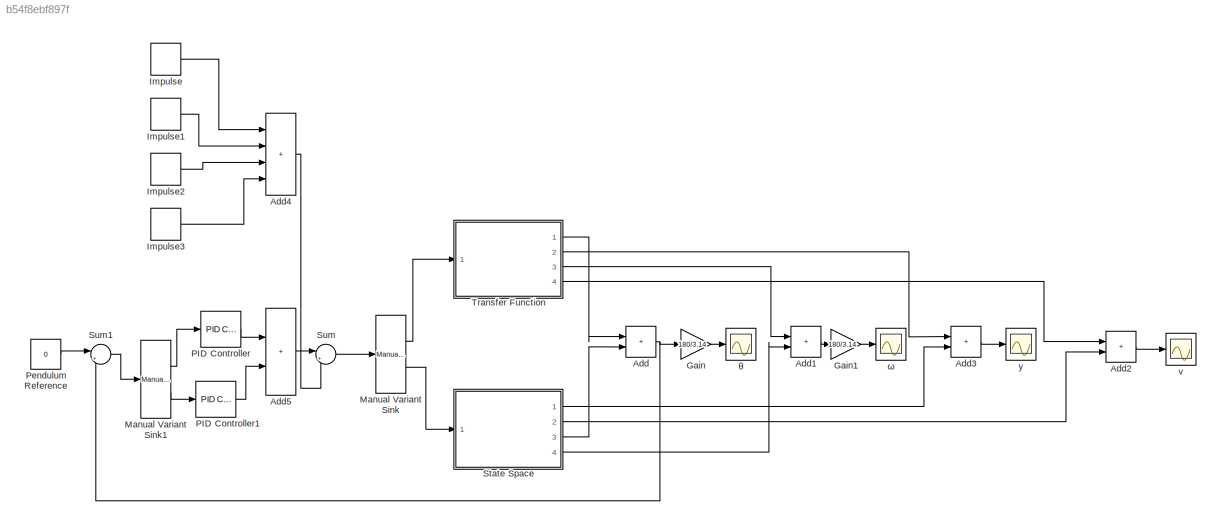
MODEL slx_b54f8ebf897f
KIND model
CONFIG AbsTol = auto
CONFIG EnableMultiTasking = off
CONFIG FixedStep = auto
CONFIG MaxStep = auto
CONFIG MinStep = auto
CONFIG RelTol = 1e-3
CONFIG SampleTimeConstraint = Unconstrained
CONFIG SolverName = VariableStepAuto
CONFIG StartTime = 0.0
CONFIG StopTime = 10
BLOCK [Sum] Add
  IconShape = rectangular
  Ports = [2, 1]
BLOCK [Sum] Add1
  IconShape = rectangular
  Ports = [2, 1]
BLOCK [Sum] Add2
  IconShape = rectangular
  Ports = [2, 1]
BLOCK [Sum] Add3
  IconShape = rectangular
  Ports = [2, 1]
BLOCK [Sum] Add4
  IconShape = rectangular
  Inputs = ++++
  Ports = [4, 1]
BLOCK [Sum] Add5
  IconShape = rectangular
  Ports = [2, 1]
BLOCK [Gain] Gain
  Gain = 180/3.14
BLOCK [Gain] Gain1
  Gain = 180/3.14
BLOCK [DiscretePulseGenerator] Impulse
  Amplitude = 10e5
  Period = 10
  PhaseDelay = 2
  Ports = [0, 1]
  PulseType = Time based
  PulseWidth = 0.01
BLOCK [DiscretePulseGenerator] Impulse1
  Amplitude = -10e5
  Period = 10
  PhaseDelay = 4
  Ports = [0, 1]
  PulseType = Time based
  PulseWidth = 0.01
BLOCK [DiscretePulseGenerator] Impulse2
  Amplitude = 10e5
  Period = 10
  PhaseDelay = 6
  Ports = [0, 1]
  PulseType = Time based
  PulseWidth = 0.01
BLOCK [DiscretePulseGenerator] Impulse3
  Amplitude = -10e5
  Period = 10
  PhaseDelay = 8
  Ports = [0, 1]
  PulseType = Time based
  PulseWidth = 0.01
BLOCK [Reference] Manual Variant Sink  REF=simulink/Signal
Routing/Manual
Variant Sink
  Ports = [1, 2]
  SourceBlock = simulink/Signal\nRouting/Manual\nVariant Sink
  SourceProductBaseCode = SL
  SourceType = ManualVariantSink
BLOCK [Reference] Manual Variant Sink1  REF=simulink/Signal
Routing/Manual
Variant Sink
  Ports = [1, 2]
  SourceBlock = simulink/Signal\nRouting/Manual\nVariant Sink
  SourceProductBaseCode = SL
  SourceType = ManualVariantSink
BLOCK [Reference] PID Controller  REF=slpidlib/PID Controller
  Ports = [1, 1]
  SourceBlock = slpidlib/PID Controller
  SourceProductBaseCode = SL
  SourceType = PID 1dof
BLOCK [Reference] PID Controller1  REF=slpidlib/PID Controller
  Ports = [1, 1]
  SourceBlock = slpidlib/PID Controller
  SourceProductBaseCode = SL
  SourceType = PID 1dof
BLOCK [Constant] Pendulum Reference
  OutDataTypeStr = Inherit: Inherit via back propagation
  Value = 0
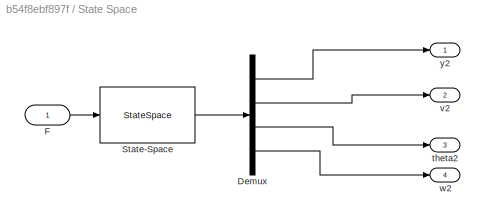
BLOCK [SubSystem] State Space
  Ports = [1, 4]
  RequestExecContextInheritance = off
BLOCK [Demux] State Space/Demux
  Ports = [1, 4]
BLOCK [Inport] State Space/F
BLOCK [StateSpace] State Space/State-Space
  A = [0 1 0 0;0 0 -7.0335 0;0 0 0 1;0 0 14.853 0]
  B = [0;0.016;0;-0.01407]
  C = [1 0 0 0;0 1 0 0;0 0 1 0;0 0 0 1]
  D = [0;0;0;0]
  InitialCondition = 0
  Ports = [1, 1]
BLOCK [Outport] State Space/theta2
  Port = 3
BLOCK [Outport] State Space/v2
  Port = 2
BLOCK [Outport] State Space/w2
  Port = 4
BLOCK [Outport] State Space/y2
  IconDisplay = Port number and signal name
BLOCK [Sum] Sum
  Inputs = |++
  Ports = [2, 1]
BLOCK [Sum] Sum1
  Inputs = |+-
  Ports = [2, 1]
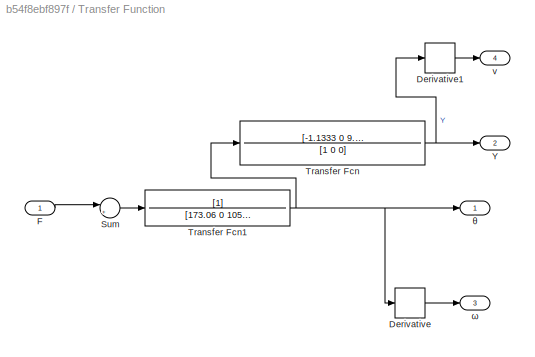
BLOCK [SubSystem] Transfer Function
  Ports = [1, 4]
  RequestExecContextInheritance = off
BLOCK [Derivative] Transfer Function/Derivative
BLOCK [Derivative] Transfer Function/Derivative1
BLOCK [Inport] Transfer Function/F
BLOCK [Sum] Transfer Function/Sum
  Inputs = |+-
  Ports = [2, 1]
BLOCK [TransferFcn] Transfer Function/Transfer Fcn
  Denominator = [1 0 0]
  Numerator = [-1.1333 0 9.8]
BLOCK [TransferFcn] Transfer Function/Transfer Fcn1
  Denominator = [173.06 0 1055.46]
BLOCK [Outport] Transfer Function/Y
  Port = 2
BLOCK [Outport] Transfer Function/v
  Port = 4
BLOCK [Outport] Transfer Function/θ
BLOCK [Outport] Transfer Function/ω
  Port = 3
BLOCK [Scope] v
  Floating = off
  NumInputPorts = 1
  Ports = [1]
  ScopeSpecificationString = Simulink.scopes.TimeScopeBlockCfg('CurrentConfiguration', extmgr.ConfigurationSet(extmgr.Configuration('Core','General UI',true),extmgr.Configuration('Core','Source UI',true),extmgr.Configuration('Sources','WiredSimulink',true,'DataLoggingVariableName','v','DataLogging',true,'DataLoggingSaveFormat','Array'),extmgr.Configuration('Visuals','Time Domain',true,'SerializedDisplays',{struct('MinYLimReal...<+1411ch>
BLOCK [Scope] y
  Floating = off
  NumInputPorts = 1
  Ports = [1]
  ScopeSpecificationString = Simulink.scopes.TimeScopeBlockCfg('CurrentConfiguration', extmgr.ConfigurationSet(extmgr.Configuration('Core','General UI',true),extmgr.Configuration('Core','Source UI',true),extmgr.Configuration('Sources','WiredSimulink',true,'DataLoggingVariableName','y','DataLogging',true,'DataLoggingSaveFormat','Array'),extmgr.Configuration('Visuals','Time Domain',true,'SerializedDisplays',{struct('MinYLimReal...<+1438ch>
BLOCK [Scope] θ
  Floating = off
  NumInputPorts = 1
  Ports = [1]
  ScopeSpecificationString = Simulink.scopes.TimeScopeBlockCfg('CurrentConfiguration', extmgr.ConfigurationSet(extmgr.Configuration('Core','General UI',true),extmgr.Configuration('Core','Source UI',true),extmgr.Configuration('Sources','WiredSimulink',true,'DataLoggingVariableName','theta','DataLogging',true,'DataLoggingSaveFormat','Array'),extmgr.Configuration('Visuals','Time Domain',true,'SerializedDisplays',{struct('MinYLim...<+1448ch>
BLOCK [Scope] ω
  Floating = off
  NumInputPorts = 1
  Ports = [1]
  ScopeSpecificationString = Simulink.scopes.TimeScopeBlockCfg('CurrentConfiguration', extmgr.ConfigurationSet(extmgr.Configuration('Core','General UI',true),extmgr.Configuration('Core','Source UI',true),extmgr.Configuration('Sources','WiredSimulink',true,'DataLoggingVariableName','w','DataLogging',true,'DataLoggingSaveFormat','Array'),extmgr.Configuration('Visuals','Time Domain',true,'SerializedDisplays',{struct('MinYLimReal...<+1457ch>
LINE Add1:1 -> Gain1:1
LINE Add2:1 -> v:1
LINE Add3:1 -> y:1
LINE Add4:1 -> Sum:2
LINE Add5:1 -> Sum:1
NET Add:1 -> Gain:1, Sum1:2
LINE Gain1:1 -> ω:1
LINE Gain:1 -> θ:1
LINE Impulse1:1 -> Add4:2
LINE Impulse2:1 -> Add4:3
LINE Impulse3:1 -> Add4:4
LINE Impulse:1 -> Add4:1
LINE Manual Variant Sink1:1 -> PID Controller:1
LINE Manual Variant Sink1:2 -> PID Controller1:1
LINE Manual Variant Sink:1 -> Transfer Function:1
LINE Manual Variant Sink:2 -> State Space:1
LINE PID Controller1:1 -> Add5:2
LINE PID Controller:1 -> Add5:1
LINE Pendulum Reference:1 -> Sum1:1
LINE State Space/Demux:1 -> State Space/y2:1
LINE State Space/Demux:2 -> State Space/v2:1
LINE State Space/Demux:3 -> State Space/theta2:1
LINE State Space/Demux:4 -> State Space/w2:1
LINE State Space/F:1 -> State Space/State-Space:1
LINE State Space/State-Space:1 -> State Space/Demux:1
LINE State Space:1 -> Add3:2
LINE State Space:2 -> Add2:2
LINE State Space:3 -> Add:2
LINE State Space:4 -> Add1:2
LINE Sum1:1 -> Manual Variant Sink1:1
LINE Sum:1 -> Manual Variant Sink:1
LINE Transfer Function/Derivative1:1 -> Transfer Function/v:1
LINE Transfer Function/Derivative:1 -> Transfer Function/ω:1
LINE Transfer Function/F:1 -> Transfer Function/Sum:1
LINE Transfer Function/Sum:1 -> Transfer Function/Transfer Fcn1:1
NET Transfer Function/Transfer Fcn1:1 -> Transfer Function/Derivative:1, Transfer Function/Transfer Fcn:1, Transfer Function/θ:1
NET Transfer Function/Transfer Fcn:1 -> Transfer Function/Derivative1:1, Transfer Function/Y:1
LINE Transfer Function:1 -> Add:1
LINE Transfer Function:2 -> Add3:1
LINE Transfer Function:3 -> Add1:1
LINE Transfer Function:4 -> Add2:1
note: NET lines group one-source signal fan-out (src -> all destinations, sorted); 1:1 wires keep LINE
